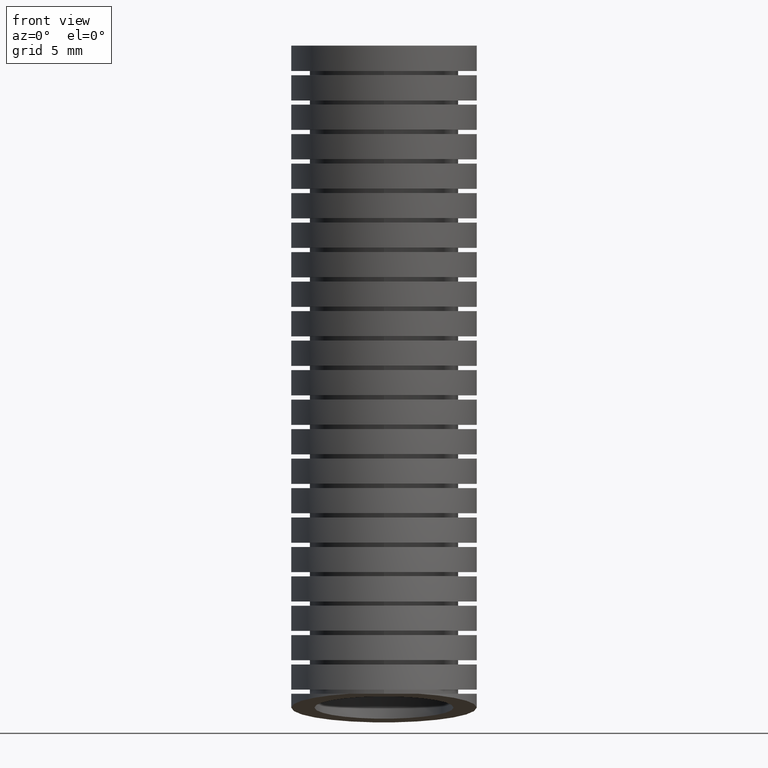
[diagram: clean part render]
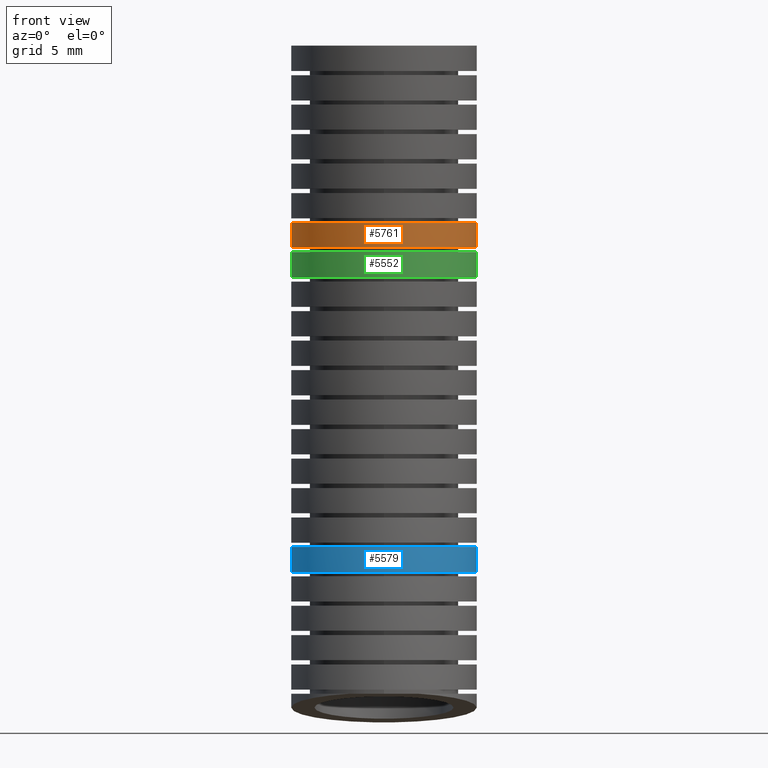
[diagram: same view with three faces highlighted in distinct colors, each labeled with its STEP entity id]
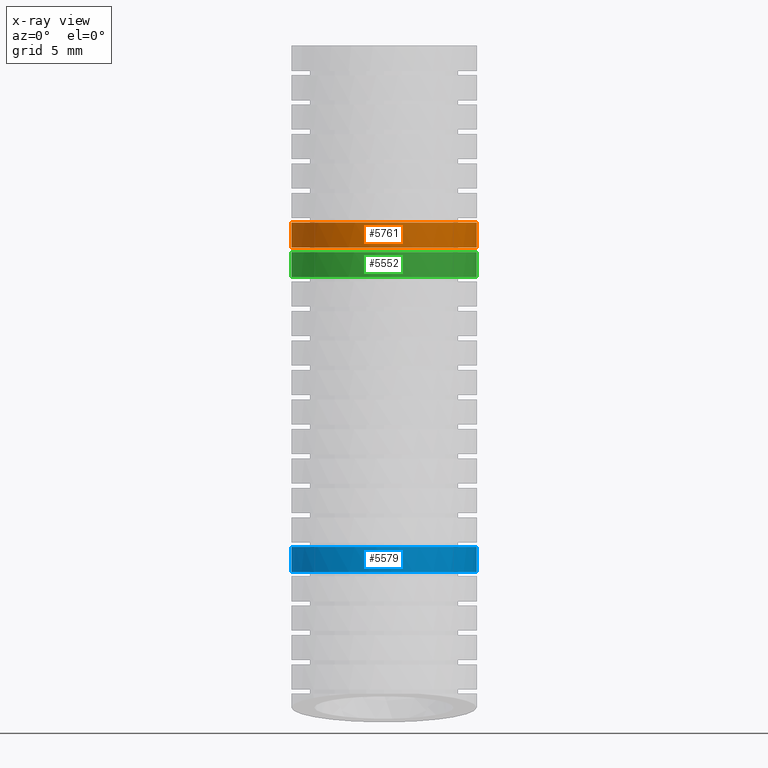
[diagram: x-ray of the same camera — body ghosted, the three highlighted faces saturated]
A machine part, front view with three faces highlighted in distinct colors.
The next image is the same camera in x-ray (body ghosted, the three faces saturated) — at least one of them is partly hidden behind the body in this view.
Their STEP definitions:

[orange] entity #5761 — the highlighted face is a freeform B-spline surface patch.
#5638 = EDGE_LOOP ( 'NONE', ( #5639, #5731, #5640, #5715 ) ) ;
#5639 = ORIENTED_EDGE ( 'NONE', *, *, #5717, .T. ) ;
#5640 = ORIENTED_EDGE ( 'NONE', *, *, #5641, .T. ) ;
#5641 = EDGE_CURVE ( 'NONE', #5691, #5642, #7615, .T. ) ;
#5642 = VERTEX_POINT ( 'NONE', #7616 ) ;
#5691 = VERTEX_POINT ( 'NONE', #8127 ) ;
#5715 = ORIENTED_EDGE ( 'NONE', *, *, #5716, .F. ) ;
#5716 = EDGE_CURVE ( 'NONE', #5729, #5642, #8288, .T. ) ;
#5717 = EDGE_CURVE ( 'NONE', #5729, #5730, #8251, .T. ) ;
#5729 = VERTEX_POINT ( 'NONE', #8449 ) ;
#5730 = VERTEX_POINT ( 'NONE', #8451 ) ;
#5731 = ORIENTED_EDGE ( 'NONE', *, *, #5732, .T. ) ;
#5732 = EDGE_CURVE ( 'NONE', #5730, #5691, #8788, .T. ) ;
#5761 = ADVANCED_FACE ( 'NONE', ( #9085 ), #9091, .T. ) ;
#7613 = CARTESIAN_POINT ( 'NONE',  ( -0.2199999999999999500, 0.007713585182326674000, -0.4795671320415986200 ) ) ;
#7614 = CARTESIAN_POINT ( 'NONE',  ( -0.2199999999999999700, 0.02219237201288411200, -0.4795671320415985700 ) ) ;
#7615 = B_SPLINE_CURVE_WITH_KNOTS ( 'NONE', 3,
 ( #7614, #7613, #7731, #7730, #7729, #7728, #7727, #7726, #7725, #7724, #7723, #7722, #7721, #7720, #7719, #7718, #7717, #7716, #7715, #7714, #7713, #7712, #7711, #7710, #7709, #7708, #7707, #7706, #7705, #7704, #7703, #7702, #7701, #7700, #7699, #7698, #7697, #7696, #7695, #7694 ),
 .UNSPECIFIED., .F., .F.,
 ( 4, 2, 2, 2, 2, 2, 2, 2, 2, 2, 2, 2, 2, 2, 2, 2, 2, 2, 2, 4 ),
 ( 0.01745920951321220900, 0.01855033275365057900, 0.01964145599408894900, 0.02073257923452731500, 0.02127814085474650000, 0.02182370247496568500, 0.02291482571540405200, 0.02400594895584241800, 0.02509707219628078500, 0.02564263381649997000, 0.02618819543671915100, 0.02727931867715752100, 0.02837044191759588800, 0.02946156515803425400, 0.03055268839847262400, 0.03109825001869180600, 0.03164381163891098700, 0.03273493487934935700, 0.03382605811978772700, 0.03491718136022609100 ),
 .UNSPECIFIED. ) ;
#7616 = CARTESIAN_POINT ( 'NONE',  ( 0.2199999999999999700, 0.02219237202448472500, -0.4795671322310171000 ) ) ;
#7694 = CARTESIAN_POINT ( 'NONE',  ( 0.2199999999999999700, 0.02219237202448472500, -0.4795671322310171000 ) ) ;
#7695 = CARTESIAN_POINT ( 'NONE',  ( 0.2199999999999999500, 0.007666907733164392600, -0.4795671322310171000 ) ) ;
#7696 = CARTESIAN_POINT ( 'NONE',  ( 0.2185540617818977600, -0.006753438540380980000, -0.4795671320415984500 ) ) ;
#7697 = CARTESIAN_POINT ( 'NONE',  ( 0.2129456810547563900, -0.03484055861532363300, -0.4795671320415985700 ) ) ;
#7698 = CARTESIAN_POINT ( 'NONE',  ( 0.2087646283243442000, -0.04864010325292816800, -0.4795671320415984000 ) ) ;
#7699 = CARTESIAN_POINT ( 'NONE',  ( 0.1976430514516916400, -0.07541651113506690800, -0.4795671320415984000 ) ) ;
#7700 = CARTESIAN_POINT ( 'NONE',  ( 0.1908559305139313500, -0.08805165233813844200, -0.4795671320415985700 ) ) ;
#7701 = CARTESIAN_POINT ( 'NONE',  ( 0.1788996474801369500, -0.1059140077986274200, -0.4795671320415983400 ) ) ;
#7702 = CARTESIAN_POINT ( 'NONE',  ( 0.1746161178319986000, -0.1116850686843394900, -0.4795671320415986200 ) ) ;
#7703 = CARTESIAN_POINT ( 'NONE',  ( 0.1654372916448343900, -0.1228515184016248000, -0.4795671320415988400 ) ) ;
#7704 = CARTESIAN_POINT ( 'NONE',  ( 0.1605402571896458500, -0.1282408354133729700, -0.4795671320415987300 ) ) ;
#7705 = CARTESIAN_POINT ( 'NONE',  ( 0.1452541689545589200, -0.1434869578566744500, -0.4795671320415987300 ) ) ;
#7706 = CARTESIAN_POINT ( 'NONE',  ( 0.1341761157653919800, -0.1525590625110115900, -0.4795671320415984500 ) ) ;
#7707 = CARTESIAN_POINT ( 'NONE',  ( 0.1102505549984603000, -0.1685257184177483500, -0.4795671320415985700 ) ) ;
#7708 = CARTESIAN_POINT ( 'NONE',  ( 0.09734372304109512000, -0.1754069714523317500, -0.4795671320415984500 ) ) ;
#7709 = CARTESIAN_POINT ( 'NONE',  ( 0.07084739955976232500, -0.1863554998267029900, -0.4795671320415983400 ) ) ;
#7710 = CARTESIAN_POINT ( 'NONE',  ( 0.05713006202272133400, -0.1905233217131080700, -0.4795671320415984500 ) ) ;
#7711 = CARTESIAN_POINT ( 'NONE',  ( 0.02872888819876785400, -0.1961677037877662400, -0.4795671320415984500 ) ) ;
#7712 = CARTESIAN_POINT ( 'NONE',  ( 0.01433700889301552300, -0.1975688156515819400, -0.4795671320415986200 ) ) ;
#7713 = CARTESIAN_POINT ( 'NONE',  ( -0.007142090889869392800, -0.1975705329500557500, -0.4795671320415984000 ) ) ;
#7714 = CARTESIAN_POINT ( 'NONE',  ( -0.01430437749715655000, -0.1972228332788294200, -0.4795671320415982900 ) ) ;
#7715 = CARTESIAN_POINT ( 'NONE',  ( -0.02863421034858299600, -0.1958192732693284600, -0.4795671320415984000 ) ) ;
#7716 = CARTESIAN_POINT ( 'NONE',  ( -0.03584139532468915600, -0.1947540897194972300, -0.4795671320415984500 ) ) ;
#7717 = CARTESIAN_POINT ( 'NONE',  ( -0.05709760965927510700, -0.1905299536348556700, -0.4795671320415985700 ) ) ;
#7718 = CARTESIAN_POINT ( 'NONE',  ( -0.07080841198873461000, -0.1863695525654106600, -0.4795671320415982300 ) ) ;
#7719 = CARTESIAN_POINT ( 'NONE',  ( -0.09732883809482122100, -0.1754151751660471800, -0.4795671320415981200 ) ) ;
#7720 = CARTESIAN_POINT ( 'NONE',  ( -0.1102475933199934900, -0.1685260371518297100, -0.4795671320415984000 ) ) ;
#7721 = CARTESIAN_POINT ( 'NONE',  ( -0.1341439653793208800, -0.1525821732806929600, -0.4795671320415983400 ) ) ;
#7722 = CARTESIAN_POINT ( 'NONE',  ( -0.1452279887237283300, -0.1435120780020920400, -0.4795671320415986200 ) ) ;
#7723 = CARTESIAN_POINT ( 'NONE',  ( -0.1605419801375019600, -0.1282396122366726600, -0.4795671320415987300 ) ) ;
#7724 = CARTESIAN_POINT ( 'NONE',  ( -0.1654452842355721200, -0.1228416794146035400, -0.4795671320415986200 ) ) ;
#7725 = CARTESIAN_POINT ( 'NONE',  ( -0.1746052834028467800, -0.1116983648581334300, -0.4795671320415985700 ) ) ;
#7726 = CARTESIAN_POINT ( 'NONE',  ( -0.1788843793452873900, -0.1059351005632405000, -0.4795671320415983400 ) ) ;
#7727 = CARTESIAN_POINT ( 'NONE',  ( -0.1908376485657085100, -0.08808238937273532600, -0.4795671320415984000 ) ) ;
#7728 = CARTESIAN_POINT ( 'NONE',  ( -0.1976453913623814300, -0.07541422951683489400, -0.4795671320415986800 ) ) ;
#7729 = CARTESIAN_POINT ( 'NONE',  ( -0.2087772231447090900, -0.04860642337956493100, -0.4795671320415986800 ) ) ;
#7730 = CARTESIAN_POINT ( 'NONE',  ( -0.2129372059138361600, -0.03487366003350667700, -0.4795671320415986200 ) ) ;
#7731 = CARTESIAN_POINT ( 'NONE',  ( -0.2185515648189305100, -0.006775267855804515500, -0.4795671320415986800 ) ) ;
#8127 = CARTESIAN_POINT ( 'NONE',  ( -0.2199999999999999700, 0.02219237201288411200, -0.4795671320415985700 ) ) ;
#8186 = CARTESIAN_POINT ( 'NONE',  ( -0.2199999999999999700, 0.02018742611343610200, -0.4196063643234410100 ) ) ;
#8187 = CARTESIAN_POINT ( 'NONE',  ( -0.2199999999999999700, 0.005849701799895745700, -0.4196063643234406200 ) ) ;
#8188 = CARTESIAN_POINT ( 'NONE',  ( -0.2185752575099229000, -0.008678179381126976600, -0.4196063643234406700 ) ) ;
#8189 = CARTESIAN_POINT ( 'NONE',  ( -0.2129032496342288000, -0.03705518149315478000, -0.4196063643234407800 ) ) ;
#8190 = CARTESIAN_POINT ( 'NONE',  ( -0.2086368526435294100, -0.05100475082178192900, -0.4196063643234404000 ) ) ;
#8191 = CARTESIAN_POINT ( 'NONE',  ( -0.1976216726382698800, -0.07746621896670863300, -0.4196063643234406700 ) ) ;
#8192 = CARTESIAN_POINT ( 'NONE',  ( -0.1908592870917483800, -0.09009810898591660800, -0.4196063643234407800 ) ) ;
#8193 = CARTESIAN_POINT ( 'NONE',  ( -0.1747551173643984400, -0.1141308856623485200, -0.4196063643234405600 ) ) ;
#8243 = CARTESIAN_POINT ( 'NONE',  ( 0.1907752160494727300, -0.09022971688961810300, -0.4196063643234404500 ) ) ;
#8244 = CARTESIAN_POINT ( 'NONE',  ( 0.1976882830241574700, -0.07733249458576703400, -0.4196063643234405600 ) ) ;
#8245 = CARTESIAN_POINT ( 'NONE',  ( 0.2086898034943227600, -0.05085096943894935900, -0.4196063643234405600 ) ) ;
#8246 = CARTESIAN_POINT ( 'NONE',  ( 0.2128756369973299800, -0.03715249489475058000, -0.4196063643234407800 ) ) ;
#8247 = CARTESIAN_POINT ( 'NONE',  ( 0.2185553056174002500, -0.008818489880314733100, -0.4196063643234408900 ) ) ;
#8248 = CARTESIAN_POINT ( 'NONE',  ( 0.2199999999999999500, 0.005668193791341376300, -0.4196063643235181700 ) ) ;
#8249 = CARTESIAN_POINT ( 'NONE',  ( 0.2199999999999999700, 0.02018742611344167800, -0.4196063643235183300 ) ) ;
#8251 = B_SPLINE_CURVE_WITH_KNOTS ( 'NONE', 3,
 ( #8249, #8248, #8247, #8246, #8245, #8244, #8243, #8398, #8397, #8396, #8395, #8394, #8393, #8392, #8391, #8390, #8389, #8388, #8387, #8386, #8385, #8384, #8383, #8382, #8381, #8380, #8379, #8378, #8377, #8376, #8375, #8374, #8193, #8192, #8191, #8190, #8189, #8188, #8187, #8186 ),
 .UNSPECIFIED., .F., .F.,
 ( 4, 2, 2, 2, 2, 2, 2, 2, 2, 2, 2, 2, 2, 2, 2, 2, 2, 2, 2, 4 ),
 ( 0.0000000000000000000, 0.001102543246383733000, 0.002205086492767465900, 0.003307629739151198900, 0.004410172985534931800, 0.004961444608726797900, 0.005512716231918664800, 0.006615259478302401200, 0.007717802724686135900, 0.008269074347878003700, 0.008820345971069870600, 0.009922889217453606200, 0.01102543246383734000, 0.01212797571022107600, 0.01267924733341294400, 0.01323051895660481300, 0.01433306220298855200, 0.01543560544937228900, 0.01653814869575602800, 0.01764069194213976600 ),
 .UNSPECIFIED. ) ;
#8283 = CARTESIAN_POINT ( 'NONE',  ( 0.2199999999999999700, 0.02219237202448472500, -0.4795671322310171000 ) ) ;
#8284 = CARTESIAN_POINT ( 'NONE',  ( 0.2199999999999999700, 0.02179454919137489100, -0.4665756083424791300 ) ) ;
#8285 = CARTESIAN_POINT ( 'NONE',  ( 0.2199999999999999700, 0.02114435569125523000, -0.4465892975316385100 ) ) ;
#8286 = CARTESIAN_POINT ( 'NONE',  ( 0.2199999999999999700, 0.02044015181305823500, -0.4266011632319961500 ) ) ;
#8287 = CARTESIAN_POINT ( 'NONE',  ( 0.2199999999999999700, 0.02018742611344167800, -0.4196063643235183300 ) ) ;
#8288 = B_SPLINE_CURVE_WITH_KNOTS ( 'NONE', 3,
 ( #8287, #8286, #8285, #8284, #8283 ),
 .UNSPECIFIED., .F., .F.,
 ( 4, 1, 4 ),
 ( 0.2666590529655155100, 0.2799999999999999700, 0.3047829149704901500 ),
 .UNSPECIFIED. ) ;
#8374 = CARTESIAN_POINT ( 'NONE',  ( -0.1655486401196832000, -0.1252943677208860900, -0.4196063643234405600 ) ) ;
#8375 = CARTESIAN_POINT ( 'NONE',  ( -0.1503469319812592300, -0.1404546281351003200, -0.4196063643234404000 ) ) ;
#8376 = CARTESIAN_POINT ( 'NONE',  ( -0.1450326659175477700, -0.1452622426868188400, -0.4196063643234407800 ) ) ;
#8377 = CARTESIAN_POINT ( 'NONE',  ( -0.1339024749620671100, -0.1543782994888781000, -0.4196063643234406200 ) ) ;
#8378 = CARTESIAN_POINT ( 'NONE',  ( -0.1280519610548336600, -0.1587084264018274500, -0.4196063643234402800 ) ) ;
#8379 = CARTESIAN_POINT ( 'NONE',  ( -0.1100146218252906100, -0.1707242819849108000, -0.4196063643234404000 ) ) ;
#8380 = CARTESIAN_POINT ( 'NONE',  ( -0.09737035526957778200, -0.1774536624268252500, -0.4196063643234403400 ) ) ;
#8381 = CARTESIAN_POINT ( 'NONE',  ( -0.07087208618290553900, -0.1884100544182616100, -0.4196063643234403400 ) ) ;
#8382 = CARTESIAN_POINT ( 'NONE',  ( -0.05686755427605450600, -0.1926496371823904200, -0.4196063643234406700 ) ) ;
#8383 = CARTESIAN_POINT ( 'NONE',  ( -0.02869114542880884400, -0.1982306068126565000, -0.4196063643234407800 ) ) ;
#8384 = CARTESIAN_POINT ( 'NONE',  ( -0.01444559860864553700, -0.1996332930201406800, -0.4196063643234406200 ) ) ;
#8385 = CARTESIAN_POINT ( 'NONE',  ( 0.007160807253548105200, -0.1996373485431119400, -0.4196063643234406200 ) ) ;
#8386 = CARTESIAN_POINT ( 'NONE',  ( 0.01443988169174796100, -0.1992803889727305900, -0.4196063643234405600 ) ) ;
#8387 = CARTESIAN_POINT ( 'NONE',  ( 0.02879763641220856000, -0.1978637994698022600, -0.4196063643234406200 ) ) ;
#8388 = CARTESIAN_POINT ( 'NONE',  ( 0.03589721101957341800, -0.1968079652376088500, -0.4196063643234406700 ) ) ;
#8389 = CARTESIAN_POINT ( 'NONE',  ( 0.05696334675037687000, -0.1926211594077509000, -0.4196063643234407800 ) ) ;
#8390 = CARTESIAN_POINT ( 'NONE',  ( 0.07069960300428467000, -0.1884808907570192400, -0.4196063643234404500 ) ) ;
#8391 = CARTESIAN_POINT ( 'NONE',  ( 0.09753037800701522300, -0.1773879779550183400, -0.4196063643234404000 ) ) ;
#8392 = CARTESIAN_POINT ( 'NONE',  ( 0.1101853169454499700, -0.1706161501645462900, -0.4196063643234404500 ) ) ;
#8393 = CARTESIAN_POINT ( 'NONE',  ( 0.1280558971299938200, -0.1587029936656189900, -0.4196063643234404500 ) ) ;
#8394 = CARTESIAN_POINT ( 'NONE',  ( 0.1338271020351971500, -0.1544367763259320000, -0.4196063643234405600 ) ) ;
#8395 = CARTESIAN_POINT ( 'NONE',  ( 0.1449897666428814900, -0.1453006010296600300, -0.4196063643234405600 ) ) ;
#8396 = CARTESIAN_POINT ( 'NONE',  ( 0.1503952901768617900, -0.1404115302754508900, -0.4196063643234403400 ) ) ;
#8397 = CARTESIAN_POINT ( 'NONE',  ( 0.1656891903051262700, -0.1251438235292954000, -0.4196063643234405600 ) ) ;
#8398 = CARTESIAN_POINT ( 'NONE',  ( 0.1747807716431193600, -0.1140864325043378600, -0.4196063643234405600 ) ) ;
#8449 = CARTESIAN_POINT ( 'NONE',  ( 0.2199999999999999700, 0.02018742611344167800, -0.4196063643235183300 ) ) ;
#8451 = CARTESIAN_POINT ( 'NONE',  ( -0.2199999999999999700, 0.02018742611343610200, -0.4196063643234410100 ) ) ;
#8599 = CARTESIAN_POINT ( 'NONE',  ( -0.2199999999999999700, 0.02219237201288411200, -0.4795671320415985700 ) ) ;
#8600 = CARTESIAN_POINT ( 'NONE',  ( -0.2199999999999999700, 0.02179454918726270200, -0.4665756082160737500 ) ) ;
#8645 = CARTESIAN_POINT ( 'NONE',  ( -0.2199999999999999700, 0.02044015181305643800, -0.4266011632319445200 ) ) ;
#8646 = CARTESIAN_POINT ( 'NONE',  ( -0.2199999999999999700, 0.02018742611343610200, -0.4196063643234410100 ) ) ;
#8650 = CARTESIAN_POINT ( 'NONE',  ( -0.2199999999999999700, 0.02114435568902750500, -0.4465892974684042000 ) ) ;
#8788 = B_SPLINE_CURVE_WITH_KNOTS ( 'NONE', 3,
 ( #8646, #8645, #8650, #8600, #8599 ),
 .UNSPECIFIED., .F., .F.,
 ( 4, 1, 4 ),
 ( 0.2666590529654662100, 0.2799999999999999700, 0.3047829148499309700 ),
 .UNSPECIFIED. ) ;
#9050 = CARTESIAN_POINT ( 'NONE',  ( 0.2199999999999999700, -0.02999999999999998800, -1.569999999999999800 ) ) ;
#9051 = CARTESIAN_POINT ( 'NONE',  ( 0.2200000000000000000, -0.009606929841608550400, -1.380125810173523200 ) ) ;
#9052 = CARTESIAN_POINT ( 'NONE',  ( 0.2200000000000000000, 0.01505095857590814400, -1.150543086741312900 ) ) ;
#9053 = CARTESIAN_POINT ( 'NONE',  ( 0.2200000000000000000, 0.02865554522839106700, -0.7739593172595274900 ) ) ;
#9054 = CARTESIAN_POINT ( 'NONE',  ( 0.2199999999999999500, 0.02383978768935241300, -0.4406884739917595300 ) ) ;
#9055 = CARTESIAN_POINT ( 'NONE',  ( 0.2199999999999999500, 0.007946595896450805000, -0.1468961579972532000 ) ) ;
#9056 = CARTESIAN_POINT ( 'NONE',  ( 0.2199999999999999700, 0.0000000000000000000, 0.0000000000000000000 ) ) ;
#9057 = CARTESIAN_POINT ( 'NONE',  ( 0.2199999999999999700, 0.4043070821439249100, -1.640550396169192700 ) ) ;
#9058 = CARTESIAN_POINT ( 'NONE',  ( 0.2199999999999999700, 0.4260466825035831300, -1.441931825041386800 ) ) ;
#9059 = CARTESIAN_POINT ( 'NONE',  ( 0.2200000000000000600, 0.4523327020065995900, -1.201776001201356700 ) ) ;
#9060 = CARTESIAN_POINT ( 'NONE',  ( 0.2199999999999999700, 0.4678224181498505900, -0.8025352102838663200 ) ) ;
#9061 = CARTESIAN_POINT ( 'NONE',  ( 0.2199999999999999700, 0.4639985686767905100, -0.4446172821565409500 ) ) ;
#9062 = CARTESIAN_POINT ( 'NONE',  ( 0.2199999999999999700, 0.4479995228922634700, -0.1482057607188469700 ) ) ;
#9063 = CARTESIAN_POINT ( 'NONE',  ( 0.2199999999999999700, 0.4399999999999999500, 0.0000000000000000000 ) ) ;
#9064 = CARTESIAN_POINT ( 'NONE',  ( -0.2199999999999998900, 0.4043070821439249100, -1.640550396169192700 ) ) ;
#9065 = CARTESIAN_POINT ( 'NONE',  ( -0.2199999999999998900, 0.4260466825035831300, -1.441931825041386800 ) ) ;
#9066 = CARTESIAN_POINT ( 'NONE',  ( -0.2199999999999999200, 0.4523327020065995900, -1.201776001201356700 ) ) ;
#9067 = CARTESIAN_POINT ( 'NONE',  ( -0.2199999999999998900, 0.4678224181498505900, -0.8025352102838663200 ) ) ;
#9068 = CARTESIAN_POINT ( 'NONE',  ( -0.2199999999999998600, 0.4639985686767905100, -0.4446172821565409500 ) ) ;
#9069 = CARTESIAN_POINT ( 'NONE',  ( -0.2199999999999998900, 0.4479995228922634700, -0.1482057607188469700 ) ) ;
#9070 = CARTESIAN_POINT ( 'NONE',  ( -0.2199999999999998900, 0.4399999999999999500, 0.0000000000000000000 ) ) ;
#9071 = CARTESIAN_POINT ( 'NONE',  ( -0.2199999999999999700, -0.02999999999999996100, -1.569999999999999800 ) ) ;
#9072 = CARTESIAN_POINT ( 'NONE',  ( -0.2200000000000000000, -0.009606929841608527800, -1.380125810173523200 ) ) ;
#9073 = CARTESIAN_POINT ( 'NONE',  ( -0.2200000000000000000, 0.01505095857590816600, -1.150543086741312900 ) ) ;
#9074 = CARTESIAN_POINT ( 'NONE',  ( -0.2200000000000000000, 0.02865554522839109900, -0.7739593172595274900 ) ) ;
#9075 = CARTESIAN_POINT ( 'NONE',  ( -0.2199999999999999500, 0.02383978768935243700, -0.4406884739917595300 ) ) ;
#9076 = CARTESIAN_POINT ( 'NONE',  ( -0.2199999999999999500, 0.007946595896450831000, -0.1468961579972532000 ) ) ;
#9077 = CARTESIAN_POINT ( 'NONE',  ( -0.2199999999999999700, 2.694222958124176600E-017, 0.0000000000000000000 ) ) ;
#9078 = CARTESIAN_POINT ( 'NONE',  ( -0.2200000000000000600, -0.4643070821439249100, -1.499449603830806900 ) ) ;
#9079 = CARTESIAN_POINT ( 'NONE',  ( -0.2200000000000000600, -0.4452605421868002200, -1.318319795305659300 ) ) ;
#9085 = FACE_OUTER_BOUND ( 'NONE', #5638, .T. ) ;
#9091 =( BOUNDED_SURFACE ( )  B_SPLINE_SURFACE ( 3, 3, ( 
 ( #9195, #9194, #9193, #9192, #9191, #9190, #9189 ),
 ( #9188, #9187, #9186, #9185, #9184, #9183, #9182 ),
 ( #9181, #9180, #9179, #9178, #9177, #9079, #9078 ),
 ( #9077, #9076, #9075, #9074, #9073, #9072, #9071 ),
 ( #9070, #9069, #9068, #9067, #9066, #9065, #9064 ),
 ( #9063, #9062, #9061, #9060, #9059, #9058, #9057 ),
 ( #9056, #9055, #9054, #9053, #9052, #9051, #9050 ) ),
 .UNSPECIFIED., .F., .F., .T. ) 
 B_SPLINE_SURFACE_WITH_KNOTS ( ( 4, 3, 4 ),
 ( 4, 1, 1, 1, 4 ),
 ( 0.0000000000000000000, 0.5000000000000000000, 1.000000000000000000 ),
 ( 0.0000000000000000000, 0.2799999999999999700, 0.5600000000000000500, 0.6361022193888284900, 1.000000000000000000 ),
 .UNSPECIFIED. ) 
 GEOMETRIC_REPRESENTATION_ITEM ( )  RATIONAL_B_SPLINE_SURFACE ( (
 ( 1.000000000000000000, 1.000000000000000000, 1.000000000000000200, 0.9999999999999997800, 0.9999999999999997800, 1.000000000000000000, 1.000000000000000000),
 ( 0.3333333333333333100, 0.3333333333333333100, 0.3333333333333333700, 0.3333333333333333100, 0.3333333333333332600, 0.3333333333333333100, 0.3333333333333333100),
 ( 0.3333333333333333100, 0.3333333333333333100, 0.3333333333333333700, 0.3333333333333333100, 0.3333333333333332600, 0.3333333333333333100, 0.3333333333333333100),
 ( 1.000000000000000000, 1.000000000000000000, 1.000000000000000200, 0.9999999999999997800, 0.9999999999999997800, 1.000000000000000000, 1.000000000000000000),
 ( 0.3333333333333333100, 0.3333333333333333100, 0.3333333333333333700, 0.3333333333333333100, 0.3333333333333332600, 0.3333333333333333100, 0.3333333333333333100),
 ( 0.3333333333333333100, 0.3333333333333333100, 0.3333333333333333700, 0.3333333333333333100, 0.3333333333333332600, 0.3333333333333333100, 0.3333333333333333100),
 ( 1.000000000000000000, 1.000000000000000000, 1.000000000000000200, 0.9999999999999997800, 0.9999999999999997800, 1.000000000000000000, 1.000000000000000000) ) ) 
 REPRESENTATION_ITEM ( '' )  SURFACE ( )  );
#9177 = CARTESIAN_POINT ( 'NONE',  ( -0.2200000000000000600, -0.4222307848547833300, -1.099310172281269500 ) ) ;
#9178 = CARTESIAN_POINT ( 'NONE',  ( -0.2199999999999999700, -0.4105113276930683100, -0.7453834242351884400 ) ) ;
#9179 = CARTESIAN_POINT ( 'NONE',  ( -0.2200000000000000300, -0.4163189932980856400, -0.4367596658269781200 ) ) ;
#9180 = CARTESIAN_POINT ( 'NONE',  ( -0.2200000000000000800, -0.4321063310993618100, -0.1455865552756593400 ) ) ;
#9181 = CARTESIAN_POINT ( 'NONE',  ( -0.2200000000000000600, -0.4399999999999999500, 0.0000000000000000000 ) ) ;
#9182 = CARTESIAN_POINT ( 'NONE',  ( 0.2199999999999999700, -0.4643070821439249100, -1.499449603830806900 ) ) ;
#9183 = CARTESIAN_POINT ( 'NONE',  ( 0.2199999999999999700, -0.4452605421868002200, -1.318319795305659300 ) ) ;
#9184 = CARTESIAN_POINT ( 'NONE',  ( 0.2200000000000000600, -0.4222307848547833300, -1.099310172281269500 ) ) ;
#9185 = CARTESIAN_POINT ( 'NONE',  ( 0.2199999999999999700, -0.4105113276930683100, -0.7453834242351884400 ) ) ;
#9186 = CARTESIAN_POINT ( 'NONE',  ( 0.2199999999999999700, -0.4163189932980856400, -0.4367596658269781200 ) ) ;
#9187 = CARTESIAN_POINT ( 'NONE',  ( 0.2199999999999999700, -0.4321063310993618100, -0.1455865552756593400 ) ) ;
#9188 = CARTESIAN_POINT ( 'NONE',  ( 0.2199999999999999700, -0.4399999999999999500, 0.0000000000000000000 ) ) ;
#9189 = CARTESIAN_POINT ( 'NONE',  ( 0.2199999999999999700, -0.02999999999999998800, -1.569999999999999800 ) ) ;
#9190 = CARTESIAN_POINT ( 'NONE',  ( 0.2200000000000000000, -0.009606929841608550400, -1.380125810173523200 ) ) ;
#9191 = CARTESIAN_POINT ( 'NONE',  ( 0.2200000000000000000, 0.01505095857590814400, -1.150543086741312900 ) ) ;
#9192 = CARTESIAN_POINT ( 'NONE',  ( 0.2200000000000000000, 0.02865554522839106700, -0.7739593172595274900 ) ) ;
#9193 = CARTESIAN_POINT ( 'NONE',  ( 0.2199999999999999500, 0.02383978768935241300, -0.4406884739917595300 ) ) ;
#9194 = CARTESIAN_POINT ( 'NONE',  ( 0.2199999999999999500, 0.007946595896450805000, -0.1468961579972532000 ) ) ;
#9195 = CARTESIAN_POINT ( 'NONE',  ( 0.2199999999999999700, 0.0000000000000000000, 0.0000000000000000000 ) ) ;

[blue] entity #5579 — the highlighted face is a freeform B-spline surface patch.
#5558 = VERTEX_POINT ( 'NONE', #6737 ) ;
#5559 = ORIENTED_EDGE ( 'NONE', *, *, #5560, .T. ) ;
#5560 = EDGE_CURVE ( 'NONE', #5558, #5561, #6854, .T. ) ;
#5561 = VERTEX_POINT ( 'NONE', #6727 ) ;
#5562 = ORIENTED_EDGE ( 'NONE', *, *, #5563, .F. ) ;
#5563 = EDGE_CURVE ( 'NONE', #5750, #5561, #6855, .T. ) ;
#5568 = EDGE_LOOP ( 'NONE', ( #5682, #5752, #5559, #5562 ) ) ;
#5579 = ADVANCED_FACE ( 'NONE', ( #6875 ), #6830, .T. ) ;
#5682 = ORIENTED_EDGE ( 'NONE', *, *, #5683, .T. ) ;
#5683 = EDGE_CURVE ( 'NONE', #5750, #5751, #7935, .T. ) ;
#5750 = VERTEX_POINT ( 'NONE', #8896 ) ;
#5751 = VERTEX_POINT ( 'NONE', #8897 ) ;
#5752 = ORIENTED_EDGE ( 'NONE', *, *, #5753, .T. ) ;
#5753 = EDGE_CURVE ( 'NONE', #5751, #5558, #8908, .T. ) ;
#6332 = CARTESIAN_POINT ( 'NONE',  ( -0.2199999999999999700, -0.02999999999999996100, -1.569999999999999800 ) ) ;
#6694 = CARTESIAN_POINT ( 'NONE',  ( 0.05723499465144018400, -0.2111370371709667400, -1.248776978602097200 ) ) ;
#6695 = CARTESIAN_POINT ( 'NONE',  ( 0.02876515826191984600, -0.2168302208639989200, -1.248776978602097000 ) ) ;
#6696 = CARTESIAN_POINT ( 'NONE',  ( 0.01435510195238915900, -0.2182409509769245600, -1.248776978602095900 ) ) ;
#6697 = CARTESIAN_POINT ( 'NONE',  ( -0.007172218548734330700, -0.2182413000106602800, -1.248776978602095900 ) ) ;
#6717 = CARTESIAN_POINT ( 'NONE',  ( 0.2200000000000000800, -0.01206682659172389700, -1.248776978410087100 ) ) ;
#6718 = CARTESIAN_POINT ( 'NONE',  ( 0.2185601675074032000, -0.02652132542253739200, -1.248776978602095900 ) ) ;
#6719 = CARTESIAN_POINT ( 'NONE',  ( 0.2129737853416192600, -0.05467833612638094100, -1.248776978602095900 ) ) ;
#6720 = CARTESIAN_POINT ( 'NONE',  ( 0.2088118614306027400, -0.06850689083863291400, -1.248776978602095900 ) ) ;
#6721 = CARTESIAN_POINT ( 'NONE',  ( 0.1977251845068612200, -0.09537459099424303000, -1.248776978602095900 ) ) ;
#6722 = CARTESIAN_POINT ( 'NONE',  ( 0.1454287318489300200, -0.1637626293739701300, -1.248776978602095500 ) ) ;
#6723 = CARTESIAN_POINT ( 'NONE',  ( 0.1343547734799419900, -0.1728920124511394200, -1.248776978602096100 ) ) ;
#6724 = CARTESIAN_POINT ( 'NONE',  ( 0.1104228754730932900, -0.1889676191702285000, -1.248776978602096400 ) ) ;
#6725 = CARTESIAN_POINT ( 'NONE',  ( 0.09750696192768663900, -0.1958996120278327400, -1.248776978602097000 ) ) ;
#6726 = CARTESIAN_POINT ( 'NONE',  ( 0.07097708375864247900, -0.2069336491376172200, -1.248776978602097000 ) ) ;
#6727 = CARTESIAN_POINT ( 'NONE',  ( 0.2200000000000000000, 0.002489545544100739400, -1.248776978410086800 ) ) ;
#6730 = CARTESIAN_POINT ( 'NONE',  ( -0.2088229320271534600, -0.06847569340893830400, -1.248776978602097000 ) ) ;
#6731 = CARTESIAN_POINT ( 'NONE',  ( -0.2129664711644565500, -0.05470703874768819600, -1.248776978602095900 ) ) ;
#6732 = CARTESIAN_POINT ( 'NONE',  ( -0.2185579542841260000, -0.02654062980319885100, -1.248776978602096100 ) ) ;
#6733 = CARTESIAN_POINT ( 'NONE',  ( -0.2199999999999999700, -0.01202029976604277800, -1.248776978602095000 ) ) ;
#6737 = CARTESIAN_POINT ( 'NONE',  ( -0.2199999999999999700, 0.002489545510064593600, -1.248776978602095900 ) ) ;
#6742 = CARTESIAN_POINT ( 'NONE',  ( -0.2199999999999999700, 0.002489545510064593600, -1.248776978602095900 ) ) ;
#6747 = CARTESIAN_POINT ( 'NONE',  ( 0.2199999999999999700, 0.007563927002592735700, -1.189028078740984600 ) ) ;
#6749 = CARTESIAN_POINT ( 'NONE',  ( -0.09751839350731794600, -0.1958950925121281700, -1.248776978602095500 ) ) ;
#6750 = CARTESIAN_POINT ( 'NONE',  ( -0.1104477709467004400, -0.1889511767737659900, -1.248776978602096100 ) ) ;
#6751 = CARTESIAN_POINT ( 'NONE',  ( -0.1343357874334330000, -0.1729044852800160600, -1.248776978602096600 ) ) ;
#6752 = CARTESIAN_POINT ( 'NONE',  ( -0.1454139371491827100, -0.1637782043711694400, -1.248776978602095000 ) ) ;
#6753 = CARTESIAN_POINT ( 'NONE',  ( -0.1607164777982616200, -0.1484141316866769700, -1.248776978602094800 ) ) ;
#6754 = CARTESIAN_POINT ( 'NONE',  ( 0.1909567415425043300, -0.1080583704737803100, -1.248776978602095200 ) ) ;
#6755 = CARTESIAN_POINT ( 'NONE',  ( 0.1790277436716458100, -0.1259964790224648900, -1.248776978602095900 ) ) ;
#6756 = CARTESIAN_POINT ( 'NONE',  ( 0.1747531960156330800, -0.1317932662958690700, -1.248776978602095500 ) ) ;
#6757 = CARTESIAN_POINT ( 'NONE',  ( 0.1655917068015797200, -0.1430119024928948300, -1.248776978602096100 ) ) ;
#6758 = CARTESIAN_POINT ( 'NONE',  ( 0.1607008577193251000, -0.1484301746872158700, -1.248776978602096400 ) ) ;
#6760 = CARTESIAN_POINT ( 'NONE',  ( -0.2200000000000000000, -0.009606929841608527800, -1.380125810173523200 ) ) ;
#6761 = CARTESIAN_POINT ( 'NONE',  ( -0.2200000000000000000, 0.01505095857590816600, -1.150543086741312900 ) ) ;
#6762 = CARTESIAN_POINT ( 'NONE',  ( -0.2200000000000000000, 0.02865554522839109900, -0.7739593172595274900 ) ) ;
#6763 = CARTESIAN_POINT ( 'NONE',  ( -0.2199999999999999500, 0.02383978768935243700, -0.4406884739917595300 ) ) ;
#6764 = CARTESIAN_POINT ( 'NONE',  ( -0.2199999999999999500, 0.007946595896450831000, -0.1468961579972532000 ) ) ;
#6765 = CARTESIAN_POINT ( 'NONE',  ( -0.2199999999999999700, 2.694222958124176600E-017, 0.0000000000000000000 ) ) ;
#6766 = CARTESIAN_POINT ( 'NONE',  ( -0.2200000000000000600, -0.4643070821439249100, -1.499449603830806900 ) ) ;
#6767 = CARTESIAN_POINT ( 'NONE',  ( -0.2200000000000000600, -0.4452605421868002200, -1.318319795305659300 ) ) ;
#6768 = CARTESIAN_POINT ( 'NONE',  ( -0.2200000000000000600, -0.4222307848547833300, -1.099310172281269500 ) ) ;
#6769 = CARTESIAN_POINT ( 'NONE',  ( -0.2199999999999999700, -0.4105113276930683100, -0.7453834242351884400 ) ) ;
#6770 = CARTESIAN_POINT ( 'NONE',  ( -0.2200000000000000300, -0.4163189932980856400, -0.4367596658269781200 ) ) ;
#6771 = CARTESIAN_POINT ( 'NONE',  ( -0.2200000000000000800, -0.4321063310993618100, -0.1455865552756593400 ) ) ;
#6772 = CARTESIAN_POINT ( 'NONE',  ( -0.2200000000000000600, -0.4399999999999999500, 0.0000000000000000000 ) ) ;
#6773 = CARTESIAN_POINT ( 'NONE',  ( 0.2199999999999999700, -0.4643070821439249100, -1.499449603830806900 ) ) ;
#6774 = CARTESIAN_POINT ( 'NONE',  ( 0.2199999999999999700, -0.4452605421868002200, -1.318319795305659300 ) ) ;
#6775 = CARTESIAN_POINT ( 'NONE',  ( 0.2200000000000000600, -0.4222307848547833300, -1.099310172281269500 ) ) ;
#6776 = CARTESIAN_POINT ( 'NONE',  ( 0.2199999999999999700, -0.4105113276930683100, -0.7453834242351884400 ) ) ;
#6777 = CARTESIAN_POINT ( 'NONE',  ( 0.2199999999999999700, -0.4163189932980856400, -0.4367596658269781200 ) ) ;
#6778 = CARTESIAN_POINT ( 'NONE',  ( 0.2199999999999999700, -0.4321063310993618100, -0.1455865552756593400 ) ) ;
#6779 = CARTESIAN_POINT ( 'NONE',  ( 0.2199999999999999700, -0.4399999999999999500, 0.0000000000000000000 ) ) ;
#6780 = CARTESIAN_POINT ( 'NONE',  ( 0.2199999999999999700, -0.02999999999999998800, -1.569999999999999800 ) ) ;
#6781 = CARTESIAN_POINT ( 'NONE',  ( 0.2200000000000000000, -0.009606929841608550400, -1.380125810173523200 ) ) ;
#6782 = CARTESIAN_POINT ( 'NONE',  ( 0.2200000000000000000, 0.01505095857590814400, -1.150543086741312900 ) ) ;
#6783 = CARTESIAN_POINT ( 'NONE',  ( 0.2200000000000000000, 0.02865554522839106700, -0.7739593172595274900 ) ) ;
#6787 = CARTESIAN_POINT ( 'NONE',  ( -0.1656121020134628500, -0.1429876670800783200, -1.248776978602095000 ) ) ;
#6788 = CARTESIAN_POINT ( 'NONE',  ( -0.1747508827259517400, -0.1317953581556133600, -1.248776978602095000 ) ) ;
#6789 = CARTESIAN_POINT ( 'NONE',  ( -0.1790195256468307400, -0.1260077386150059700, -1.248776978602095500 ) ) ;
#6790 = CARTESIAN_POINT ( 'NONE',  ( -0.1909421328174081800, -0.1080825302672480800, -1.248776978602095200 ) ) ;
#6791 = CARTESIAN_POINT ( 'NONE',  ( -0.1977334293950357100, -0.09535897124576221700, -1.248776978602096400 ) ) ;
#6794 = CARTESIAN_POINT ( 'NONE',  ( -0.01435185878334563500, -0.2178900104830095200, -1.248776978602096100 ) ) ;
#6795 = CARTESIAN_POINT ( 'NONE',  ( -0.02871901083427131100, -0.2164720680578935400, -1.248776978602096400 ) ) ;
#6796 = CARTESIAN_POINT ( 'NONE',  ( -0.03594511727029076100, -0.2153957893448121800, -1.248776978602096600 ) ) ;
#6797 = CARTESIAN_POINT ( 'NONE',  ( -0.05722949054650931800, -0.2111354010007286100, -1.248776978602096600 ) ) ;
#6798 = CARTESIAN_POINT ( 'NONE',  ( -0.07095953387979002400, -0.2069407132599679600, -1.248776978602096400 ) ) ;
#6830 =( BOUNDED_SURFACE ( )  B_SPLINE_SURFACE ( 3, 3, ( 
 ( #6843, #6842, #6841, #6783, #6782, #6781, #6780 ),
 ( #6779, #6778, #6777, #6776, #6775, #6774, #6773 ),
 ( #6772, #6771, #6770, #6769, #6768, #6767, #6766 ),
 ( #6765, #6764, #6763, #6762, #6761, #6760, #6332 ),
 ( #7046, #7037, #7050, #7038, #7036, #6887, #6994 ),
 ( #7014, #6966, #7049, #6955, #7006, #7020, #7019 ),
 ( #6999, #7018, #7030, #7029, #7068, #7048, #7047 ) ),
 .UNSPECIFIED., .F., .F., .F. ) 
 B_SPLINE_SURFACE_WITH_KNOTS ( ( 4, 3, 4 ),
 ( 4, 1, 1, 1, 4 ),
 ( 0.0000000000000000000, 0.5000000000000000000, 1.000000000000000000 ),
 ( 0.0000000000000000000, 0.2799999999999999700, 0.5600000000000000500, 0.6361022193888284900, 1.000000000000000000 ),
 .UNSPECIFIED. ) 
 GEOMETRIC_REPRESENTATION_ITEM ( )  RATIONAL_B_SPLINE_SURFACE ( (
 ( 1.000000000000000000, 1.000000000000000000, 1.000000000000000200, 0.9999999999999997800, 0.9999999999999997800, 1.000000000000000000, 1.000000000000000000),
 ( 0.3333333333333333100, 0.3333333333333333100, 0.3333333333333333700, 0.3333333333333333100, 0.3333333333333332600, 0.3333333333333333100, 0.3333333333333333100),
 ( 0.3333333333333333100, 0.3333333333333333100, 0.3333333333333333700, 0.3333333333333333100, 0.3333333333333332600, 0.3333333333333333100, 0.3333333333333333100),
 ( 1.000000000000000000, 1.000000000000000000, 1.000000000000000200, 0.9999999999999997800, 0.9999999999999997800, 1.000000000000000000, 1.000000000000000000),
 ( 0.3333333333333333100, 0.3333333333333333100, 0.3333333333333333700, 0.3333333333333333100, 0.3333333333333332600, 0.3333333333333333100, 0.3333333333333333100),
 ( 0.3333333333333333100, 0.3333333333333333100, 0.3333333333333333700, 0.3333333333333333100, 0.3333333333333332600, 0.3333333333333333100, 0.3333333333333333100),
 ( 1.000000000000000000, 1.000000000000000000, 1.000000000000000200, 0.9999999999999997800, 0.9999999999999997800, 1.000000000000000000, 1.000000000000000000) ) ) 
 REPRESENTATION_ITEM ( '' )  SURFACE ( )  );
#6841 = CARTESIAN_POINT ( 'NONE',  ( 0.2199999999999999500, 0.02383978768935241300, -0.4406884739917595300 ) ) ;
#6842 = CARTESIAN_POINT ( 'NONE',  ( 0.2199999999999999500, 0.007946595896450805000, -0.1468961579972532000 ) ) ;
#6843 = CARTESIAN_POINT ( 'NONE',  ( 0.2199999999999999700, 0.0000000000000000000, 0.0000000000000000000 ) ) ;
#6854 = B_SPLINE_CURVE_WITH_KNOTS ( 'NONE', 3,
 ( #6742, #6733, #6732, #6731, #6730, #6791, #6790, #6789, #6788, #6787, #6753, #6752, #6751, #6750, #6749, #6798, #6797, #6796, #6795, #6794, #6697, #6696, #6695, #6694, #6726, #6725, #6724, #6723, #6722, #6758, #6757, #6756, #6755, #6754, #6721, #6720, #6719, #6718, #6717, #6856 ),
 .UNSPECIFIED., .F., .F.,
 ( 4, 2, 2, 2, 2, 2, 2, 2, 2, 2, 2, 2, 2, 2, 2, 2, 2, 2, 2, 4 ),
 ( 0.01749537406678810400, 0.01858884776210734800, 0.01968232145742659600, 0.02077579515274584000, 0.02132253200040546200, 0.02186926884806508100, 0.02296274254338432800, 0.02405621623870357600, 0.02514968993402282000, 0.02569642678168244200, 0.02624316362934206400, 0.02733663732466130900, 0.02843011101998055300, 0.02952358471529980100, 0.03061705841061904800, 0.03116379525827866700, 0.03171053210593828600, 0.03280400580125753700, 0.03389747949657678800, 0.03499095319189603200 ),
 .UNSPECIFIED. ) ;
#6855 = B_SPLINE_CURVE_WITH_KNOTS ( 'NONE', 3,
 ( #6747, #6860, #6859, #6858 ),
 .UNSPECIFIED., .F., .F.,
 ( 4, 4 ),
 ( 0.7566919030868384200, 0.7948330423246552400 ),
 .UNSPECIFIED. ) ;
#6856 = CARTESIAN_POINT ( 'NONE',  ( 0.2200000000000000000, 0.002489545544100739400, -1.248776978410086800 ) ) ;
#6858 = CARTESIAN_POINT ( 'NONE',  ( 0.2200000000000000000, 0.002489545544100739400, -1.248776978410086800 ) ) ;
#6859 = CARTESIAN_POINT ( 'NONE',  ( 0.2200000000000000000, 0.004254538452305179000, -1.228863161108355400 ) ) ;
#6860 = CARTESIAN_POINT ( 'NONE',  ( 0.2200000000000000000, 0.005950289688471854300, -1.208947006082504500 ) ) ;
#6875 = FACE_OUTER_BOUND ( 'NONE', #5568, .T. ) ;
#6887 = CARTESIAN_POINT ( 'NONE',  ( -0.2199999999999998900, 0.4260466825035831300, -1.441931825041386800 ) ) ;
#6955 = CARTESIAN_POINT ( 'NONE',  ( 0.2199999999999999700, 0.4678224181498505900, -0.8025352102838663200 ) ) ;
#6966 = CARTESIAN_POINT ( 'NONE',  ( 0.2199999999999999700, 0.4479995228922634700, -0.1482057607188469700 ) ) ;
#6994 = CARTESIAN_POINT ( 'NONE',  ( -0.2199999999999998900, 0.4043070821439249100, -1.640550396169192700 ) ) ;
#6999 = CARTESIAN_POINT ( 'NONE',  ( 0.2199999999999999700, 0.0000000000000000000, 0.0000000000000000000 ) ) ;
#7006 = CARTESIAN_POINT ( 'NONE',  ( 0.2200000000000000600, 0.4523327020065995900, -1.201776001201356700 ) ) ;
#7014 = CARTESIAN_POINT ( 'NONE',  ( 0.2199999999999999700, 0.4399999999999999500, 0.0000000000000000000 ) ) ;
#7018 = CARTESIAN_POINT ( 'NONE',  ( 0.2199999999999999500, 0.007946595896450805000, -0.1468961579972532000 ) ) ;
#7019 = CARTESIAN_POINT ( 'NONE',  ( 0.2199999999999999700, 0.4043070821439249100, -1.640550396169192700 ) ) ;
#7020 = CARTESIAN_POINT ( 'NONE',  ( 0.2199999999999999700, 0.4260466825035831300, -1.441931825041386800 ) ) ;
#7029 = CARTESIAN_POINT ( 'NONE',  ( 0.2200000000000000000, 0.02865554522839106700, -0.7739593172595274900 ) ) ;
#7030 = CARTESIAN_POINT ( 'NONE',  ( 0.2199999999999999500, 0.02383978768935241300, -0.4406884739917595300 ) ) ;
#7036 = CARTESIAN_POINT ( 'NONE',  ( -0.2199999999999999200, 0.4523327020065995900, -1.201776001201356700 ) ) ;
#7037 = CARTESIAN_POINT ( 'NONE',  ( -0.2199999999999998900, 0.4479995228922634700, -0.1482057607188469700 ) ) ;
#7038 = CARTESIAN_POINT ( 'NONE',  ( -0.2199999999999998900, 0.4678224181498505900, -0.8025352102838663200 ) ) ;
#7046 = CARTESIAN_POINT ( 'NONE',  ( -0.2199999999999998900, 0.4399999999999999500, 0.0000000000000000000 ) ) ;
#7047 = CARTESIAN_POINT ( 'NONE',  ( 0.2199999999999999700, -0.02999999999999998800, -1.569999999999999800 ) ) ;
#7048 = CARTESIAN_POINT ( 'NONE',  ( 0.2200000000000000000, -0.009606929841608550400, -1.380125810173523200 ) ) ;
#7049 = CARTESIAN_POINT ( 'NONE',  ( 0.2199999999999999700, 0.4639985686767905100, -0.4446172821565409500 ) ) ;
#7050 = CARTESIAN_POINT ( 'NONE',  ( -0.2199999999999998600, 0.4639985686767905100, -0.4446172821565409500 ) ) ;
#7068 = CARTESIAN_POINT ( 'NONE',  ( 0.2200000000000000000, 0.01505095857590814400, -1.150543086741312900 ) ) ;
#7935 = B_SPLINE_CURVE_WITH_KNOTS ( 'NONE', 3,
 ( #7979, #7978, #7977, #7976, #7975, #7974, #7973, #7972, #7971, #7970, #7969, #7968, #7967, #7966, #7965, #7964, #7963, #7962, #7961, #7960, #7959, #7958, #7957, #7956, #7955, #7954, #7953, #7952, #7951, #7950, #8167, #8166, #8165, #8164, #8163, #8162, #8161, #8160, #8159, #8158 ),
 .UNSPECIFIED., .F., .F.,
 ( 4, 2, 2, 2, 2, 2, 2, 2, 2, 2, 2, 2, 2, 2, 2, 2, 2, 2, 2, 4 ),
 ( 0.0000000000000000000, 0.001104417138727022600, 0.002208834277454044300, 0.003313251416181067200, 0.004417668554908088700, 0.004969877124271599200, 0.005522085693635109800, 0.006626502832362129100, 0.007730919971089148500, 0.008283128540452657300, 0.008835337109816167000, 0.009939754248543186300, 0.01104417138727020700, 0.01214858852599722700, 0.01270079709536073600, 0.01325300566472424600, 0.01435742280345126200, 0.01546183994217828000, 0.01656625708090529700, 0.01767067421963231300 ),
 .UNSPECIFIED. ) ;
#7950 = CARTESIAN_POINT ( 'NONE',  ( -0.1451703909527511100, -0.1583405070228533500, -1.189028078740381300 ) ) ;
#7951 = CARTESIAN_POINT ( 'NONE',  ( -0.1340437309730029600, -0.1675014416903790600, -1.189028078740381500 ) ) ;
#7952 = CARTESIAN_POINT ( 'NONE',  ( -0.1281937948338346400, -0.1718539543979012200, -1.189028078740381700 ) ) ;
#7953 = CARTESIAN_POINT ( 'NONE',  ( -0.1101539885489375700, -0.1839345488480946300, -1.189028078740381700 ) ) ;
#7954 = CARTESIAN_POINT ( 'NONE',  ( -0.09750201170854874700, -0.1907042727055384400, -1.189028078740380600 ) ) ;
#7955 = CARTESIAN_POINT ( 'NONE',  ( -0.07097379284452118300, -0.2017303453836649100, -1.189028078740380600 ) ) ;
#7956 = CARTESIAN_POINT ( 'NONE',  ( -0.05694874363812717900, -0.2059981660098605700, -1.189028078740381700 ) ) ;
#7957 = CARTESIAN_POINT ( 'NONE',  ( -0.02873275849359795100, -0.2116154851529993800, -1.189028078740381700 ) ) ;
#7958 = CARTESIAN_POINT ( 'NONE',  ( -0.01446202075587030800, -0.2130282868061834100, -1.189028078740381500 ) ) ;
#7959 = CARTESIAN_POINT ( 'NONE',  ( 0.007190858823155872100, -0.2130309286702717400, -1.189028078740381300 ) ) ;
#7960 = CARTESIAN_POINT ( 'NONE',  ( 0.01448422904803320200, -0.2126705301741043900, -1.189028078740381500 ) ) ;
#7961 = CARTESIAN_POINT ( 'NONE',  ( 0.02885996275791025500, -0.2112435044052091700, -1.189028078740381300 ) ) ;
#7962 = CARTESIAN_POINT ( 'NONE',  ( 0.03596897952305568700, -0.2101802550947318700, -1.189028078740384200 ) ) ;
#7963 = CARTESIAN_POINT ( 'NONE',  ( 0.05706463251285974500, -0.2059641536501939900, -1.189028078740384400 ) ) ;
#7964 = CARTESIAN_POINT ( 'NONE',  ( 0.07083682228592699800, -0.2017889605855822100, -1.189028078740381500 ) ) ;
#7965 = CARTESIAN_POINT ( 'NONE',  ( 0.09768244853382245000, -0.1906275886440013900, -1.189028078740381700 ) ) ;
#7966 = CARTESIAN_POINT ( 'NONE',  ( 0.1103357693058311900, -0.1838194413205650200, -1.189028078740381300 ) ) ;
#7967 = CARTESIAN_POINT ( 'NONE',  ( 0.1282084044694768700, -0.1718408292742535400, -1.189028078740381300 ) ) ;
#7968 = CARTESIAN_POINT ( 'NONE',  ( 0.1339800207880239600, -0.1675513730091846000, -1.189028078740381100 ) ) ;
#7969 = CARTESIAN_POINT ( 'NONE',  ( 0.1451428615630735700, -0.1583656756184221300, -1.189028078740380900 ) ) ;
#7970 = CARTESIAN_POINT ( 'NONE',  ( 0.1505432296150938400, -0.1534544078469848300, -1.189028078740381100 ) ) ;
#7971 = CARTESIAN_POINT ( 'NONE',  ( 0.1658160225729808100, -0.1381259266200295100, -1.189028078740381300 ) ) ;
#7972 = CARTESIAN_POINT ( 'NONE',  ( 0.1748934379063717700, -0.1270272222070267800, -1.189028078740380900 ) ) ;
#7973 = CARTESIAN_POINT ( 'NONE',  ( 0.1908599084844445900, -0.1030867346769617400, -1.189028078740381100 ) ) ;
#7974 = CARTESIAN_POINT ( 'NONE',  ( 0.1977550345785480400, -0.09015351981398867000, -1.189028078740380400 ) ) ;
#7975 = CARTESIAN_POINT ( 'NONE',  ( 0.2087253863421489900, -0.06360959084741769900, -1.189028078740380200 ) ) ;
#7976 = CARTESIAN_POINT ( 'NONE',  ( 0.2128987108072403800, -0.04988114476968037700, -1.189028078740380600 ) ) ;
#7977 = CARTESIAN_POINT ( 'NONE',  ( 0.2185606183255650600, -0.02149004998670551000, -1.189028078740381100 ) ) ;
#7978 = CARTESIAN_POINT ( 'NONE',  ( 0.2199999999999999200, -0.006979911629388594300, -1.189028078740984400 ) ) ;
#7979 = CARTESIAN_POINT ( 'NONE',  ( 0.2199999999999999700, 0.007563927002592735700, -1.189028078740984600 ) ) ;
#8158 = CARTESIAN_POINT ( 'NONE',  ( -0.2200000000000000000, 0.007563927002690549800, -1.189028078740380900 ) ) ;
#8159 = CARTESIAN_POINT ( 'NONE',  ( -0.2199999999999999700, -0.006798540601319610900, -1.189028078740380600 ) ) ;
#8160 = CARTESIAN_POINT ( 'NONE',  ( -0.2185802340230420200, -0.02135072759968675500, -1.189028078740381100 ) ) ;
#8161 = CARTESIAN_POINT ( 'NONE',  ( -0.2129266316830719900, -0.04978175705046950600, -1.189028078740381300 ) ) ;
#8162 = CARTESIAN_POINT ( 'NONE',  ( -0.2086733057834729800, -0.06376236626961669100, -1.189028078740381700 ) ) ;
#8163 = CARTESIAN_POINT ( 'NONE',  ( -0.1976861938852133600, -0.09029302976733864800, -1.189028078740381300 ) ) ;
#8164 = CARTESIAN_POINT ( 'NONE',  ( -0.1909394639668193800, -0.1029616899987246300, -1.189028078740381500 ) ) ;
#8165 = CARTESIAN_POINT ( 'NONE',  ( -0.1748677735346696500, -0.1270714420635974100, -1.189028078740382000 ) ) ;
#8166 = CARTESIAN_POINT ( 'NONE',  ( -0.1656716269016675300, -0.1382824420434241000, -1.189028078740381700 ) ) ;
#8167 = CARTESIAN_POINT ( 'NONE',  ( -0.1504816920464260900, -0.1535102962582982900, -1.189028078740381500 ) ) ;
#8896 = CARTESIAN_POINT ( 'NONE',  ( 0.2199999999999999700, 0.007563927002592735700, -1.189028078740984600 ) ) ;
#8897 = CARTESIAN_POINT ( 'NONE',  ( -0.2200000000000000000, 0.007563927002690549800, -1.189028078740380900 ) ) ;
#8904 = CARTESIAN_POINT ( 'NONE',  ( -0.2199999999999999700, 0.002489545510064593600, -1.248776978602095900 ) ) ;
#8905 = CARTESIAN_POINT ( 'NONE',  ( -0.2200000000000000000, 0.004254538441337911100, -1.228863161237171900 ) ) ;
#8906 = CARTESIAN_POINT ( 'NONE',  ( -0.2200000000000000000, 0.005950289683279712400, -1.208947006146618100 ) ) ;
#8907 = CARTESIAN_POINT ( 'NONE',  ( -0.2200000000000000000, 0.007563927002690549800, -1.189028078740380900 ) ) ;
#8908 = B_SPLINE_CURVE_WITH_KNOTS ( 'NONE', 3,
 ( #8907, #8906, #8905, #8904 ),
 .UNSPECIFIED., .F., .F.,
 ( 4, 4 ),
 ( 0.7566919030864506200, 0.7948330424481961900 ),
 .UNSPECIFIED. ) ;

[green] entity #5552 — the highlighted face is a freeform B-spline surface patch.
#5552 = ADVANCED_FACE ( 'NONE', ( #6623 ), #6618, .T. ) ;
#5553 = EDGE_LOOP ( 'NONE', ( #5554, #5646, #5637, #5721 ) ) ;
#5554 = ORIENTED_EDGE ( 'NONE', *, *, #5555, .T. ) ;
#5555 = EDGE_CURVE ( 'NONE', #5556, #5645, #6333, .T. ) ;
#5556 = VERTEX_POINT ( 'NONE', #6834 ) ;
#5637 = ORIENTED_EDGE ( 'NONE', *, *, #5719, .T. ) ;
#5645 = VERTEX_POINT ( 'NONE', #7529 ) ;
#5646 = ORIENTED_EDGE ( 'NONE', *, *, #5710, .T. ) ;
#5710 = EDGE_CURVE ( 'NONE', #5645, #5711, #8233, .T. ) ;
#5711 = VERTEX_POINT ( 'NONE', #8232 ) ;
#5719 = EDGE_CURVE ( 'NONE', #5711, #5720, #8536, .T. ) ;
#5720 = VERTEX_POINT ( 'NONE', #8401 ) ;
#5721 = ORIENTED_EDGE ( 'NONE', *, *, #5722, .F. ) ;
#5722 = EDGE_CURVE ( 'NONE', #5556, #5720, #8509, .T. ) ;
#6327 = CARTESIAN_POINT ( 'NONE',  ( 0.2143756658885388700, -0.02739626829797182200, -0.4895671320415988000 ) ) ;
#6328 = CARTESIAN_POINT ( 'NONE',  ( 0.2185719740796427100, -0.006319075337601324000, -0.4895671320415988500 ) ) ;
#6329 = CARTESIAN_POINT ( 'NONE',  ( 0.2199999999999999500, 0.007965665937171221100, -0.4895671322300164700 ) ) ;
#6330 = CARTESIAN_POINT ( 'NONE',  ( 0.2199999999999999700, 0.02249365347503469100, -0.4895671322300164700 ) ) ;
#6333 = B_SPLINE_CURVE_WITH_KNOTS ( 'NONE', 3,
 ( #6330, #6329, #6328, #6327, #6617, #6616, #6615, #6614, #6613, #6612, #6611, #6610, #6784, #6740, #6759, #6786, #6785, #6716, #6836, #6739, #6799, #6698, #6729, #6728, #6746, #6793, #6792, #6741, #6838, #6837, #6847, #6846, #6853, #6710, #6709, #6708, #6852, #6851, #6736, #6735, #6734, #6835 ),
 .UNSPECIFIED., .F., .F.,
 ( 4, 2, 2, 2, 2, 2, 2, 2, 2, 2, 2, 2, 2, 2, 2, 2, 2, 2, 2, 2, 4 ),
 ( 0.0000000000000000000, 0.001091313709644760500, 0.001636970564467140700, 0.002182627419289521000, 0.003273941128934280600, 0.004365254838579040200, 0.005456568548223799000, 0.006002225403046179700, 0.006547882257868558600, 0.007639195967513318300, 0.008730509677158078800, 0.009821823386802838400, 0.01091313709644759800, 0.01145879395126998100, 0.01200445080609236100, 0.01309576451573712100, 0.01418707822538188200, 0.01473273508020426200, 0.01527839193502664300, 0.01636970564467140100, 0.01746101935431616100 ),
 .UNSPECIFIED. ) ;
#6458 = CARTESIAN_POINT ( 'NONE',  ( 0.2199999999999999700, -0.4105113276930683100, -0.7453834242351884400 ) ) ;
#6459 = CARTESIAN_POINT ( 'NONE',  ( 0.2199999999999999700, -0.4163189932980856400, -0.4367596658269781200 ) ) ;
#6460 = CARTESIAN_POINT ( 'NONE',  ( 0.2199999999999999700, -0.4321063310993618100, -0.1455865552756593400 ) ) ;
#6461 = CARTESIAN_POINT ( 'NONE',  ( 0.2199999999999999700, -0.4399999999999999500, 0.0000000000000000000 ) ) ;
#6462 = CARTESIAN_POINT ( 'NONE',  ( 0.2199999999999999700, -0.02999999999999998800, -1.569999999999999800 ) ) ;
#6463 = CARTESIAN_POINT ( 'NONE',  ( 0.2200000000000000000, -0.009606929841608550400, -1.380125810173523200 ) ) ;
#6464 = CARTESIAN_POINT ( 'NONE',  ( 0.2200000000000000000, 0.01505095857590814400, -1.150543086741312900 ) ) ;
#6465 = CARTESIAN_POINT ( 'NONE',  ( 0.2200000000000000000, 0.02865554522839106700, -0.7739593172595274900 ) ) ;
#6466 = CARTESIAN_POINT ( 'NONE',  ( 0.2199999999999999500, 0.02383978768935241300, -0.4406884739917595300 ) ) ;
#6467 = CARTESIAN_POINT ( 'NONE',  ( 0.2199999999999999500, 0.007946595896450805000, -0.1468961579972532000 ) ) ;
#6468 = CARTESIAN_POINT ( 'NONE',  ( 0.2199999999999999700, 0.0000000000000000000, 0.0000000000000000000 ) ) ;
#6469 = CARTESIAN_POINT ( 'NONE',  ( -0.2199999999999999200, 0.4523327020065995900, -1.201776001201356700 ) ) ;
#6470 = CARTESIAN_POINT ( 'NONE',  ( -0.2199999999999998900, 0.4678224181498505900, -0.8025352102838663200 ) ) ;
#6471 = CARTESIAN_POINT ( 'NONE',  ( -0.2199999999999998600, 0.4639985686767905100, -0.4446172821565409500 ) ) ;
#6472 = CARTESIAN_POINT ( 'NONE',  ( -0.2199999999999998900, 0.4479995228922634700, -0.1482057607188469700 ) ) ;
#6473 = CARTESIAN_POINT ( 'NONE',  ( -0.2199999999999998900, 0.4399999999999999500, 0.0000000000000000000 ) ) ;
#6474 = CARTESIAN_POINT ( 'NONE',  ( -0.2199999999999999700, -0.02999999999999996100, -1.569999999999999800 ) ) ;
#6475 = CARTESIAN_POINT ( 'NONE',  ( -0.2200000000000000000, -0.009606929841608527800, -1.380125810173523200 ) ) ;
#6476 = CARTESIAN_POINT ( 'NONE',  ( -0.2200000000000000000, 0.01505095857590816600, -1.150543086741312900 ) ) ;
#6477 = CARTESIAN_POINT ( 'NONE',  ( -0.2200000000000000000, 0.02865554522839109900, -0.7739593172595274900 ) ) ;
#6478 = CARTESIAN_POINT ( 'NONE',  ( -0.2199999999999999500, 0.02383978768935243700, -0.4406884739917595300 ) ) ;
#6479 = CARTESIAN_POINT ( 'NONE',  ( -0.2199999999999999500, 0.007946595896450831000, -0.1468961579972532000 ) ) ;
#6480 = CARTESIAN_POINT ( 'NONE',  ( -0.2199999999999999700, 2.694222958124176600E-017, 0.0000000000000000000 ) ) ;
#6481 = CARTESIAN_POINT ( 'NONE',  ( -0.2200000000000000600, -0.4643070821439249100, -1.499449603830806900 ) ) ;
#6482 = CARTESIAN_POINT ( 'NONE',  ( -0.2200000000000000600, -0.4452605421868002200, -1.318319795305659300 ) ) ;
#6483 = CARTESIAN_POINT ( 'NONE',  ( -0.2200000000000000600, -0.4222307848547833300, -1.099310172281269500 ) ) ;
#6484 = CARTESIAN_POINT ( 'NONE',  ( -0.2199999999999999700, -0.4105113276930683100, -0.7453834242351884400 ) ) ;
#6485 = CARTESIAN_POINT ( 'NONE',  ( -0.2200000000000000300, -0.4163189932980856400, -0.4367596658269781200 ) ) ;
#6486 = CARTESIAN_POINT ( 'NONE',  ( -0.2200000000000000800, -0.4321063310993618100, -0.1455865552756593400 ) ) ;
#6487 = CARTESIAN_POINT ( 'NONE',  ( -0.2200000000000000600, -0.4399999999999999500, 0.0000000000000000000 ) ) ;
#6488 = CARTESIAN_POINT ( 'NONE',  ( 0.2199999999999999700, -0.4643070821439249100, -1.499449603830806900 ) ) ;
#6489 = CARTESIAN_POINT ( 'NONE',  ( 0.2199999999999999700, -0.4452605421868002200, -1.318319795305659300 ) ) ;
#6490 = CARTESIAN_POINT ( 'NONE',  ( 0.2200000000000000600, -0.4222307848547833300, -1.099310172281269500 ) ) ;
#6610 = CARTESIAN_POINT ( 'NONE',  ( 0.1453373445740539200, -0.1431009346105169800, -0.4895671320415989100 ) ) ;
#6611 = CARTESIAN_POINT ( 'NONE',  ( 0.1656453010119118600, -0.1228349682516905000, -0.4895671320415988000 ) ) ;
#6612 = CARTESIAN_POINT ( 'NONE',  ( 0.1749438339282983800, -0.1115265584873226000, -0.4895671320415983000 ) ) ;
#6613 = CARTESIAN_POINT ( 'NONE',  ( 0.1909234984386090100, -0.08763397619565759000, -0.4895671320415982400 ) ) ;
#6614 = CARTESIAN_POINT ( 'NONE',  ( 0.1976875322699970500, -0.07500837690367502500, -0.4895671320415987400 ) ) ;
#6615 = CARTESIAN_POINT ( 'NONE',  ( 0.2059780928239498800, -0.05504170971306234600, -0.4895671320415987400 ) ) ;
#6616 = CARTESIAN_POINT ( 'NONE',  ( 0.2084389699499513400, -0.04817700808486023000, -0.4895671320415985700 ) ) ;
#6617 = CARTESIAN_POINT ( 'NONE',  ( 0.2126319688620426400, -0.03436324519934432600, -0.4895671320415985200 ) ) ;
#6618 =( BOUNDED_SURFACE ( )  B_SPLINE_SURFACE ( 3, 3, ( 
 ( #6468, #6467, #6466, #6465, #6464, #6463, #6462 ),
 ( #6461, #6460, #6459, #6458, #6490, #6489, #6488 ),
 ( #6487, #6486, #6485, #6484, #6483, #6482, #6481 ),
 ( #6480, #6479, #6478, #6477, #6476, #6475, #6474 ),
 ( #6473, #6472, #6471, #6470, #6469, #6691, #6690 ),
 ( #6689, #6688, #6687, #6686, #6685, #6684, #6683 ),
 ( #6682, #6681, #6680, #6679, #6678, #6677, #6676 ) ),
 .UNSPECIFIED., .F., .F., .T. ) 
 B_SPLINE_SURFACE_WITH_KNOTS ( ( 4, 3, 4 ),
 ( 4, 1, 1, 1, 4 ),
 ( 0.0000000000000000000, 0.5000000000000000000, 1.000000000000000000 ),
 ( 0.0000000000000000000, 0.2799999999999999700, 0.5600000000000000500, 0.6361022193888284900, 1.000000000000000000 ),
 .UNSPECIFIED. ) 
 GEOMETRIC_REPRESENTATION_ITEM ( )  RATIONAL_B_SPLINE_SURFACE ( (
 ( 1.000000000000000000, 1.000000000000000000, 1.000000000000000200, 0.9999999999999997800, 0.9999999999999997800, 1.000000000000000000, 1.000000000000000000),
 ( 0.3333333333333333100, 0.3333333333333333100, 0.3333333333333333700, 0.3333333333333333100, 0.3333333333333332600, 0.3333333333333333100, 0.3333333333333333100),
 ( 0.3333333333333333100, 0.3333333333333333100, 0.3333333333333333700, 0.3333333333333333100, 0.3333333333333332600, 0.3333333333333333100, 0.3333333333333333100),
 ( 1.000000000000000000, 1.000000000000000000, 1.000000000000000200, 0.9999999999999997800, 0.9999999999999997800, 1.000000000000000000, 1.000000000000000000),
 ( 0.3333333333333333100, 0.3333333333333333100, 0.3333333333333333700, 0.3333333333333333100, 0.3333333333333332600, 0.3333333333333333100, 0.3333333333333333100),
 ( 0.3333333333333333100, 0.3333333333333333100, 0.3333333333333333700, 0.3333333333333333100, 0.3333333333333332600, 0.3333333333333333100, 0.3333333333333333100),
 ( 1.000000000000000000, 1.000000000000000000, 1.000000000000000200, 0.9999999999999997800, 0.9999999999999997800, 1.000000000000000000, 1.000000000000000000) ) ) 
 REPRESENTATION_ITEM ( '' )  SURFACE ( )  );
#6623 = FACE_OUTER_BOUND ( 'NONE', #5553, .T. ) ;
#6676 = CARTESIAN_POINT ( 'NONE',  ( 0.2199999999999999700, -0.02999999999999998800, -1.569999999999999800 ) ) ;
#6677 = CARTESIAN_POINT ( 'NONE',  ( 0.2200000000000000000, -0.009606929841608550400, -1.380125810173523200 ) ) ;
#6678 = CARTESIAN_POINT ( 'NONE',  ( 0.2200000000000000000, 0.01505095857590814400, -1.150543086741312900 ) ) ;
#6679 = CARTESIAN_POINT ( 'NONE',  ( 0.2200000000000000000, 0.02865554522839106700, -0.7739593172595274900 ) ) ;
#6680 = CARTESIAN_POINT ( 'NONE',  ( 0.2199999999999999500, 0.02383978768935241300, -0.4406884739917595300 ) ) ;
#6681 = CARTESIAN_POINT ( 'NONE',  ( 0.2199999999999999500, 0.007946595896450805000, -0.1468961579972532000 ) ) ;
#6682 = CARTESIAN_POINT ( 'NONE',  ( 0.2199999999999999700, 0.0000000000000000000, 0.0000000000000000000 ) ) ;
#6683 = CARTESIAN_POINT ( 'NONE',  ( 0.2199999999999999700, 0.4043070821439249100, -1.640550396169192700 ) ) ;
#6684 = CARTESIAN_POINT ( 'NONE',  ( 0.2199999999999999700, 0.4260466825035831300, -1.441931825041386800 ) ) ;
#6685 = CARTESIAN_POINT ( 'NONE',  ( 0.2200000000000000600, 0.4523327020065995900, -1.201776001201356700 ) ) ;
#6686 = CARTESIAN_POINT ( 'NONE',  ( 0.2199999999999999700, 0.4678224181498505900, -0.8025352102838663200 ) ) ;
#6687 = CARTESIAN_POINT ( 'NONE',  ( 0.2199999999999999700, 0.4639985686767905100, -0.4446172821565409500 ) ) ;
#6688 = CARTESIAN_POINT ( 'NONE',  ( 0.2199999999999999700, 0.4479995228922634700, -0.1482057607188469700 ) ) ;
#6689 = CARTESIAN_POINT ( 'NONE',  ( 0.2199999999999999700, 0.4399999999999999500, 0.0000000000000000000 ) ) ;
#6690 = CARTESIAN_POINT ( 'NONE',  ( -0.2199999999999998900, 0.4043070821439249100, -1.640550396169192700 ) ) ;
#6691 = CARTESIAN_POINT ( 'NONE',  ( -0.2199999999999998900, 0.4260466825035831300, -1.441931825041386800 ) ) ;
#6698 = CARTESIAN_POINT ( 'NONE',  ( -0.01426746783555813600, -0.1972630400587631100, -0.4895671320415983000 ) ) ;
#6708 = CARTESIAN_POINT ( 'NONE',  ( -0.1973543523667280200, -0.07488340707805665700, -0.4895671320415986300 ) ) ;
#6709 = CARTESIAN_POINT ( 'NONE',  ( -0.1905394953387825600, -0.08759642349998819600, -0.4895671320415986300 ) ) ;
#6710 = CARTESIAN_POINT ( 'NONE',  ( -0.1868399207070673100, -0.09374796973631957500, -0.4895671320415988000 ) ) ;
#6716 = CARTESIAN_POINT ( 'NONE',  ( 0.07092998065006135600, -0.1860154236223021400, -0.4895671320415990700 ) ) ;
#6728 = CARTESIAN_POINT ( 'NONE',  ( -0.05703523740869795300, -0.1902304043112652300, -0.4895671320415985200 ) ) ;
#6729 = CARTESIAN_POINT ( 'NONE',  ( -0.02883424512923663300, -0.1958354402046634000, -0.4895671320415986300 ) ) ;
#6734 = CARTESIAN_POINT ( 'NONE',  ( -0.2200000000000000000, 0.008143031295858638200, -0.4895671320415988000 ) ) ;
#6735 = CARTESIAN_POINT ( 'NONE',  ( -0.2185595741898206400, -0.006430915546753577000, -0.4895671320415982400 ) ) ;
#6736 = CARTESIAN_POINT ( 'NONE',  ( -0.2129311391543385600, -0.03460175525568732300, -0.4895671320415983500 ) ) ;
#6739 = CARTESIAN_POINT ( 'NONE',  ( 0.02868374161523329400, -0.1958612539018266800, -0.4895671320415985700 ) ) ;
#6740 = CARTESIAN_POINT ( 'NONE',  ( 0.1162142274344042000, -0.1642364728131639800, -0.4895671320415985700 ) ) ;
#6741 = CARTESIAN_POINT ( 'NONE',  ( -0.1100514471601842100, -0.1679250006189743300, -0.4895671320415985200 ) ) ;
#6746 = CARTESIAN_POINT ( 'NONE',  ( -0.07074391507300904800, -0.1860841994023508500, -0.4895671320415985200 ) ) ;
#6759 = CARTESIAN_POINT ( 'NONE',  ( 0.1099661089068913300, -0.1679731965501263200, -0.4895671320415987400 ) ) ;
#6784 = CARTESIAN_POINT ( 'NONE',  ( 0.1342571312076379900, -0.1521940151306192000, -0.4895671320415988000 ) ) ;
#6785 = CARTESIAN_POINT ( 'NONE',  ( 0.09078188349361338000, -0.1778049499107605100, -0.4895671320415989600 ) ) ;
#6786 = CARTESIAN_POINT ( 'NONE',  ( 0.09726645510068178400, -0.1747458269229434600, -0.4895671320415986300 ) ) ;
#6792 = CARTESIAN_POINT ( 'NONE',  ( -0.09730790811209907900, -0.1747263794346485000, -0.4895671320415985200 ) ) ;
#6793 = CARTESIAN_POINT ( 'NONE',  ( -0.09071544428137344500, -0.1778364686562071700, -0.4895671320415985700 ) ) ;
#6799 = CARTESIAN_POINT ( 'NONE',  ( 0.01441626563440472600, -0.1972533511519858300, -0.4895671320415982400 ) ) ;
#6834 = CARTESIAN_POINT ( 'NONE',  ( 0.2199999999999999700, 0.02249365347503469100, -0.4895671322300164700 ) ) ;
#6835 = CARTESIAN_POINT ( 'NONE',  ( -0.2200000000000000000, 0.02249365346386865400, -0.4895671320415988000 ) ) ;
#6836 = CARTESIAN_POINT ( 'NONE',  ( 0.05706593481249300900, -0.1902283851871465800, -0.4895671320415986300 ) ) ;
#6837 = CARTESIAN_POINT ( 'NONE',  ( -0.1340957157354506200, -0.1523067547302411100, -0.4895671320415985200 ) ) ;
#6838 = CARTESIAN_POINT ( 'NONE',  ( -0.1162149943567370200, -0.1642334414532787800, -0.4895671320415983500 ) ) ;
#6846 = CARTESIAN_POINT ( 'NONE',  ( -0.1657565161196517300, -0.1227251154034452700, -0.4895671320415986300 ) ) ;
#6847 = CARTESIAN_POINT ( 'NONE',  ( -0.1452089326804856500, -0.1432279477392982800, -0.4895671320415987400 ) ) ;
#6851 = CARTESIAN_POINT ( 'NONE',  ( -0.2087688703492876500, -0.04830819243963489100, -0.4895671320415985200 ) ) ;
#6852 = CARTESIAN_POINT ( 'NONE',  ( -0.2004786684373960300, -0.06829242408571911700, -0.4895671320415985700 ) ) ;
#6853 = CARTESIAN_POINT ( 'NONE',  ( -0.1748830826954450600, -0.1116005783203452100, -0.4895671320415988500 ) ) ;
#7529 = CARTESIAN_POINT ( 'NONE',  ( -0.2200000000000000000, 0.02249365346386865400, -0.4895671320415988000 ) ) ;
#8232 = CARTESIAN_POINT ( 'NONE',  ( -0.2200000000000000000, 0.02408338812513985400, -0.5495423771509384500 ) ) ;
#8233 = B_SPLINE_CURVE_WITH_KNOTS ( 'NONE', 3,
 ( #8302, #8301, #8300, #8299 ),
 .UNSPECIFIED., .F., .F.,
 ( 4, 4 ),
 ( 0.3111417604566782400, 0.3492837607537288600 ),
 .UNSPECIFIED. ) ;
#8299 = CARTESIAN_POINT ( 'NONE',  ( -0.2200000000000000000, 0.02408338812513985400, -0.5495423771509384500 ) ) ;
#8300 = CARTESIAN_POINT ( 'NONE',  ( -0.2199999999999999700, 0.02361846071986934600, -0.5295528227644497000 ) ) ;
#8301 = CARTESIAN_POINT ( 'NONE',  ( -0.2199999999999999700, 0.02308609437496085200, -0.5095609915164465200 ) ) ;
#8302 = CARTESIAN_POINT ( 'NONE',  ( -0.2200000000000000000, 0.02249365346386865400, -0.4895671320415988000 ) ) ;
#8401 = CARTESIAN_POINT ( 'NONE',  ( 0.2199999999999999700, 0.02408338811621539600, -0.5495423769590851400 ) ) ;
#8461 = CARTESIAN_POINT ( 'NONE',  ( 0.2087612225764353400, -0.04673707351093285600, -0.5495423771509380100 ) ) ;
#8462 = CARTESIAN_POINT ( 'NONE',  ( 0.1976370877405732300, -0.07350685472444842800, -0.5495423771509381200 ) ) ;
#8463 = CARTESIAN_POINT ( 'NONE',  ( 0.1908485972400731100, -0.08613844136846987600, -0.5495423771509377900 ) ) ;
#8464 = CARTESIAN_POINT ( 'NONE',  ( 0.1788903219870884000, -0.1039952344383174400, -0.5495423771509380100 ) ) ;
#8465 = CARTESIAN_POINT ( 'NONE',  ( 0.1746061379800721600, -0.1097644020472350000, -0.5495423771509381200 ) ) ;
#8466 = CARTESIAN_POINT ( 'NONE',  ( 0.1654260539764309800, -0.1209270038941041200, -0.5495423771509380100 ) ) ;
#8467 = CARTESIAN_POINT ( 'NONE',  ( 0.1605285585279971600, -0.1263142036474266300, -0.5495423771509376800 ) ) ;
#8468 = CARTESIAN_POINT ( 'NONE',  ( 0.1452414226586629100, -0.1415540029752161400, -0.5495423771509374600 ) ) ;
#8469 = CARTESIAN_POINT ( 'NONE',  ( 0.1341630622340685100, -0.1506218919271534700, -0.5495423771509383400 ) ) ;
#8470 = CARTESIAN_POINT ( 'NONE',  ( 0.1102379863033580400, -0.1665805088699082700, -0.5495423771509382300 ) ) ;
#8471 = CARTESIAN_POINT ( 'NONE',  ( 0.09733179642090687700, -0.1734580365527038100, -0.5495423771509376800 ) ) ;
#8472 = CARTESIAN_POINT ( 'NONE',  ( 0.07083790241198109600, -0.1844002714802299700, -0.5495423771509377900 ) ) ;
#8473 = CARTESIAN_POINT ( 'NONE',  ( 0.05712238282185562500, -0.1885654660844447400, -0.5495423771509377900 ) ) ;
#8501 = CARTESIAN_POINT ( 'NONE',  ( 0.2199999999999999700, 0.02408338811621539600, -0.5495423769590851400 ) ) ;
#8502 = CARTESIAN_POINT ( 'NONE',  ( 0.2199999999999999500, 0.02361846071792288500, -0.5295528226993112500 ) ) ;
#8503 = CARTESIAN_POINT ( 'NONE',  ( 0.2199999999999999500, 0.02308609437641197600, -0.5095609915781562600 ) ) ;
#8504 = CARTESIAN_POINT ( 'NONE',  ( 0.2199999999999999700, 0.02249365347503469100, -0.4895671322300164700 ) ) ;
#8509 = B_SPLINE_CURVE_WITH_KNOTS ( 'NONE', 3,
 ( #8504, #8503, #8502, #8501 ),
 .UNSPECIFIED., .F., .F.,
 ( 4, 4 ),
 ( 0.3111417605765972600, 0.3492837606316379600 ),
 .UNSPECIFIED. ) ;
#8512 = CARTESIAN_POINT ( 'NONE',  ( 0.2199999999999999700, 0.02408338811621539600, -0.5495423769590851400 ) ) ;
#8513 = CARTESIAN_POINT ( 'NONE',  ( 0.2199999999999999500, 0.009560190313619881500, -0.5495423769590850300 ) ) ;
#8514 = CARTESIAN_POINT ( 'NONE',  ( 0.2185536197486917800, -0.004857698799430375800, -0.5495423771509376800 ) ) ;
#8515 = CARTESIAN_POINT ( 'NONE',  ( 0.2129436432119614100, -0.03293971699359869700, -0.5495423771509377900 ) ) ;
#8521 = CARTESIAN_POINT ( 'NONE',  ( 0.02872629509626247600, -0.1942062422115761500, -0.5495423771509377900 ) ) ;
#8522 = CARTESIAN_POINT ( 'NONE',  ( 0.01433569091126393700, -0.1956066519197929600, -0.5495423771509377900 ) ) ;
#8523 = CARTESIAN_POINT ( 'NONE',  ( -0.007139889420250276400, -0.1956084685952860800, -0.5495423771509377900 ) ) ;
#8524 = CARTESIAN_POINT ( 'NONE',  ( -0.01430090451200362700, -0.1952610327460498300, -0.5495423771509380100 ) ) ;
#8525 = CARTESIAN_POINT ( 'NONE',  ( -0.02862799387123399600, -0.1938585324169248000, -0.5495423771509380100 ) ) ;
#8526 = CARTESIAN_POINT ( 'NONE',  ( -0.03583372580443300300, -0.1927941774627404400, -0.5495423771509380100 ) ) ;
#8527 = CARTESIAN_POINT ( 'NONE',  ( -0.05708793877738796400, -0.1885727087056185100, -0.5495423771509380100 ) ) ;
#8528 = CARTESIAN_POINT ( 'NONE',  ( -0.07079735497595962500, -0.1844148283911489800, -0.5495423771509384500 ) ) ;
#8529 = CARTESIAN_POINT ( 'NONE',  ( -0.09731498205817178100, -0.1734671658890436500, -0.5495423771509383400 ) ) ;
#8530 = CARTESIAN_POINT ( 'NONE',  ( -0.1102329107820341100, -0.1665820923218453400, -0.5495423771509377900 ) ) ;
#8531 = CARTESIAN_POINT ( 'NONE',  ( -0.1341299544740304800, -0.1506457747904112500, -0.5495423771509381200 ) ) ;
#8532 = CARTESIAN_POINT ( 'NONE',  ( -0.1452144188862994100, -0.1415798055148318500, -0.5495423771509376800 ) ) ;
#8533 = CARTESIAN_POINT ( 'NONE',  ( -0.1605292432621270600, -0.1263140791401870800, -0.5495423771509377900 ) ) ;
#8536 = B_SPLINE_CURVE_WITH_KNOTS ( 'NONE', 3,
 ( #8588, #8587, #8586, #8585, #8584, #8583, #8582, #8581, #8580, #8579, #8533, #8532, #8531, #8530, #8529, #8528, #8527, #8526, #8525, #8524, #8523, #8522, #8521, #8473, #8472, #8471, #8470, #8469, #8468, #8467, #8466, #8465, #8464, #8463, #8462, #8461, #8515, #8514, #8513, #8512 ),
 .UNSPECIFIED., .F., .F.,
 ( 4, 2, 2, 2, 2, 2, 2, 2, 2, 2, 2, 2, 2, 2, 2, 2, 2, 2, 2, 4 ),
 ( 0.01745662735487897600, 0.01854757815200692300, 0.01963852894913487000, 0.02072947974626281700, 0.02127495514482679100, 0.02182043054339076500, 0.02291138134051871200, 0.02400233213764665900, 0.02509328293477460600, 0.02563875833333858400, 0.02618423373190255400, 0.02727518452903050100, 0.02836613532615844800, 0.02945708612328639500, 0.03054803692041434300, 0.03109351231897831600, 0.03163898771754229000, 0.03272993851467023000, 0.03382088931179817700, 0.03491184010892611800 ),
 .UNSPECIFIED. ) ;
#8579 = CARTESIAN_POINT ( 'NONE',  ( -0.1654330851821548500, -0.1209182734247116200, -0.5495423771509383400 ) ) ;
#8580 = CARTESIAN_POINT ( 'NONE',  ( -0.1745946619522927000, -0.1097785371484090700, -0.5495423771509383400 ) ) ;
#8581 = CARTESIAN_POINT ( 'NONE',  ( -0.1788745294103386300, -0.1040170538667070500, -0.5495423771509380100 ) ) ;
#8582 = CARTESIAN_POINT ( 'NONE',  ( -0.1908300491110984700, -0.08616965338194898500, -0.5495423771509380100 ) ) ;
#8583 = CARTESIAN_POINT ( 'NONE',  ( -0.1976389497065481300, -0.07350563672651079500, -0.5495423771509380100 ) ) ;
#8584 = CARTESIAN_POINT ( 'NONE',  ( -0.2087739039772890700, -0.04670328922014155300, -0.5495423771509379000 ) ) ;
#8585 = CARTESIAN_POINT ( 'NONE',  ( -0.2129350871035420600, -0.03297312622106325600, -0.5495423771509376800 ) ) ;
#8586 = CARTESIAN_POINT ( 'NONE',  ( -0.2185511075231922300, -0.004879676090324109600, -0.5495423771509379000 ) ) ;
#8587 = CARTESIAN_POINT ( 'NONE',  ( -0.2200000000000000600, 0.009606878505753488700, -0.5495423771509376800 ) ) ;
#8588 = CARTESIAN_POINT ( 'NONE',  ( -0.2200000000000000000, 0.02408338812513985400, -0.5495423771509384500 ) ) ;